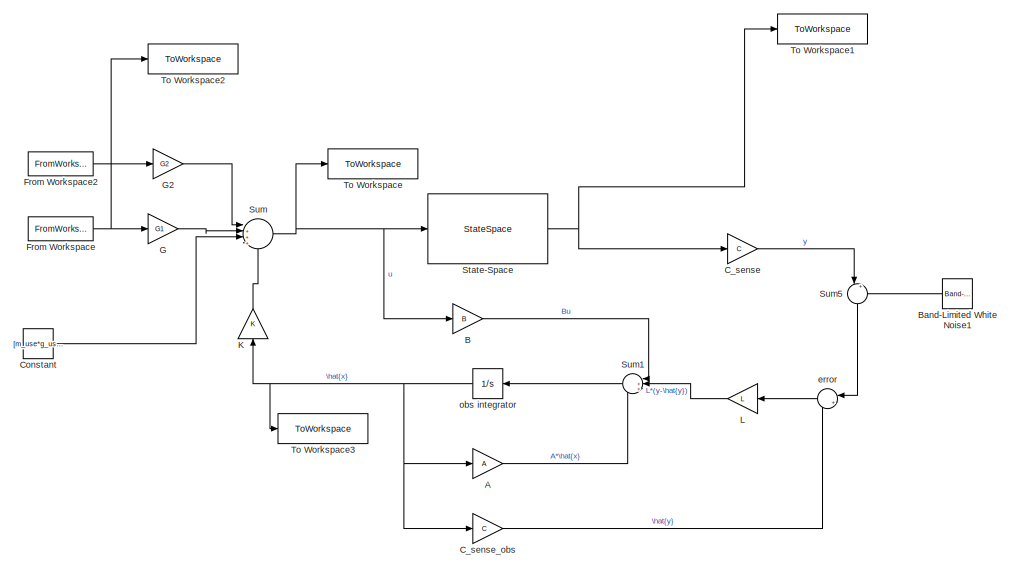
[diagram: root canvas - part 1/2, left side, full height]
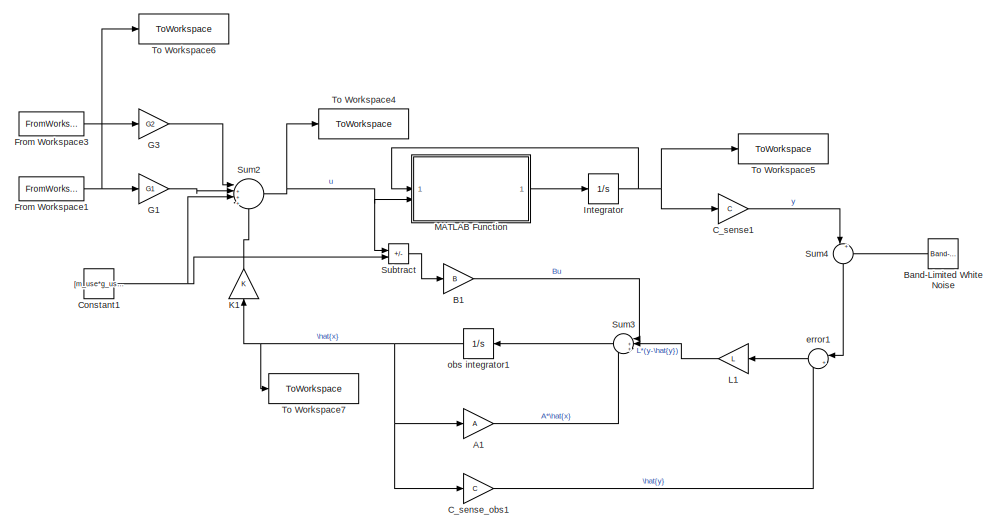
[diagram: root canvas - part 2/2, right side, full height]
MODEL slx_82502611040c
KIND model
CONFIG AbsTol = auto
CONFIG EnableMultiTasking = on
CONFIG FixedStep = .05
CONFIG MaxStep = auto
CONFIG MinStep = auto
CONFIG RelTol = 1e-3
CONFIG SampleTimeConstraint = Unconstrained
CONFIG SolverName = VariableStepAuto
CONFIG StartTime = 0.0
CONFIG StopTime = 120
BLOCK [Gain] A
  Gain = A
  Multiplication = Matrix(K*u)
BLOCK [Gain] A1
  Gain = A
  Multiplication = Matrix(K*u)
BLOCK [Gain] B
  Gain = B
  Multiplication = Matrix(K*u)
BLOCK [Gain] B1
  Gain = B
  Multiplication = Matrix(K*u)
BLOCK [Reference] Band-Limited White Noise  REF=simulink/Sources/Band-Limited
White Noise
  SourceBlock = simulink/Sources/Band-Limited\nWhite Noise
  SourceType = Band-Limited White Noise.
BLOCK [Reference] Band-Limited White Noise1  REF=simulink/Sources/Band-Limited
White Noise
  SourceBlock = simulink/Sources/Band-Limited\nWhite Noise
  SourceType = Band-Limited White Noise.
BLOCK [Gain] C_sense
  Gain = C
  Multiplication = Matrix(K*u)
BLOCK [Gain] C_sense1
  Gain = C
  Multiplication = Matrix(K*u)
BLOCK [Gain] C_sense_obs
  Gain = C
  Multiplication = Matrix(K*u)
BLOCK [Gain] C_sense_obs1
  Gain = C
  Multiplication = Matrix(K*u)
BLOCK [Constant] Constant
  Commented = on
  Value = [m_use*g_use/2, m_use*g_use/2]
BLOCK [Constant] Constant1
  Value = [m_use*g_use/2, m_use*g_use/2]
BLOCK [FromWorkspace] From Workspace
  OutDataTypeStr = double
  OutputAfterFinalValue = Setting to zero
  SampleTime = 0.01
  VariableName = reference_traj
BLOCK [FromWorkspace] From Workspace1
  OutDataTypeStr = double
  OutputAfterFinalValue = Setting to zero
  SampleTime = 0.01
  VariableName = reference_traj
BLOCK [FromWorkspace] From Workspace2
  OutDataTypeStr = double
  SampleTime = 0.01
  VariableName = ref_traj_der
BLOCK [FromWorkspace] From Workspace3
  OutDataTypeStr = double
  SampleTime = 0.01
  VariableName = ref_traj_der
BLOCK [Gain] G
  Gain = G1
  Multiplication = Matrix(K*u)
BLOCK [Gain] G1
  Gain = G1
  Multiplication = Matrix(K*u)
BLOCK [Gain] G2
  Gain = G2
  Multiplication = Matrix(K*u)
BLOCK [Gain] G3
  Gain = G2
  Multiplication = Matrix(K*u)
BLOCK [Integrator] Integrator
  InitialCondition = [1.0; 0.4; 0; 0.0; 0; 0]
BLOCK [Gain] K
  Gain = K
  Multiplication = Matrix(K*u)
  NameLocation = right
BLOCK [Gain] K1
  Gain = K
  Multiplication = Matrix(K*u)
  NameLocation = right
BLOCK [Gain] L
  Gain = L
  Multiplication = Matrix(K*u)
BLOCK [Gain] L1
  Gain = L
  Multiplication = Matrix(K*u)
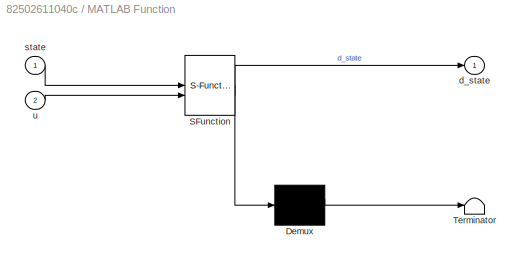
BLOCK [SubSystem] MATLAB Function
  ErrorFcn = Stateflow.Translate.translate
  PermitHierarchicalResolution = ExplicitOnly
  SFBlockType = MATLAB Function
  TreatAsAtomicUnit = on
BLOCK [Demux] MATLAB Function/ Demux 
  Outputs = 1
BLOCK [S-Function] MATLAB Function/ SFunction 
  EnableBusSupport = off
  FunctionName = sf_sfun
  PortCounts = [2 2]
  SFcnIsStateOwnerBlock = off
  SFunctionDeploymentMode = off
  Tag = Stateflow S-Function 2
BLOCK [Terminator] MATLAB Function/ Terminator 
BLOCK [Outport] MATLAB Function/d_state
BLOCK [Inport] MATLAB Function/state
BLOCK [Inport] MATLAB Function/u
  Port = 2
BLOCK [StateSpace] State-Space
  A = A
  B = B
  C = eye(6)
  D = zeros(6,2)
  InitialCondition = [1.0; 0.4; 0; 0.0; 0; 0]
BLOCK [Sum] Subtract
  IconShape = rectangular
  Inputs = +-
BLOCK [Sum] Sum
  Inputs = |+++-
BLOCK [Sum] Sum1
  Inputs = |+++
BLOCK [Sum] Sum2
  Inputs = |+++-
BLOCK [Sum] Sum3
  Inputs = |+++
BLOCK [Sum] Sum4
  Inputs = |++
  NameLocation = left
BLOCK [Sum] Sum5
  Inputs = |++
  NameLocation = left
BLOCK [ToWorkspace] To Workspace
  FixptAsFi = on
  MaxDataPoints = inf
  SampleTime = -1
  SaveFormat = Timeseries
  VariableName = ctrl_input_linear
BLOCK [ToWorkspace] To Workspace1
  FixptAsFi = on
  MaxDataPoints = inf
  SampleTime = -1
  SaveFormat = Timeseries
  VariableName = full_state_linear
BLOCK [ToWorkspace] To Workspace2
  FixptAsFi = on
  MaxDataPoints = inf
  SampleTime = -1
  SaveFormat = Timeseries
  VariableName = ref_sig_linear
BLOCK [ToWorkspace] To Workspace3
  FixptAsFi = on
  MaxDataPoints = inf
  SampleTime = -1
  SaveFormat = Timeseries
  VariableName = obs_state_linear
BLOCK [ToWorkspace] To Workspace4
  FixptAsFi = on
  MaxDataPoints = inf
  SampleTime = -1
  SaveFormat = Timeseries
  VariableName = ctrl_input_true
BLOCK [ToWorkspace] To Workspace5
  FixptAsFi = on
  MaxDataPoints = inf
  SampleTime = -1
  SaveFormat = Timeseries
  VariableName = full_state_true
BLOCK [ToWorkspace] To Workspace6
  FixptAsFi = on
  MaxDataPoints = inf
  SampleTime = -1
  SaveFormat = Timeseries
  VariableName = ref_sig_true
BLOCK [ToWorkspace] To Workspace7
  FixptAsFi = on
  MaxDataPoints = inf
  SampleTime = -1
  SaveFormat = Timeseries
  VariableName = obs_state_true
BLOCK [Sum] error
  Inputs = |+-
BLOCK [Sum] error1
  Inputs = |+-
BLOCK [Integrator] obs integrator
  InitialCondition = [0.9, 0.3, 0, 0, 0, 0]
BLOCK [Integrator] obs integrator1
  InitialCondition = [0.9; 0.3; 0; 0; 0; 0]
LINE A1:1 -> Sum3:3
LINE A:1 -> Sum1:3
LINE B1:1 -> Sum3:1
LINE B:1 -> Sum1:1
LINE Band-Limited White Noise1:1 -> Sum5:2
LINE Band-Limited White Noise:1 -> Sum4:2
LINE C_sense1:1 -> Sum4:1
LINE C_sense:1 -> Sum5:1
LINE C_sense_obs1:1 -> error1:2
LINE C_sense_obs:1 -> error:2
NET Constant1:1 -> Subtract:2, Sum2:3
LINE Constant:1 -> Sum:3
NET From Workspace1:1 -> G1:1, To Workspace6:1
LINE From Workspace2:1 -> G2:1
LINE From Workspace3:1 -> G3:1
NET From Workspace:1 -> G:1, To Workspace2:1
LINE G1:1 -> Sum2:2
LINE G2:1 -> Sum:1
LINE G3:1 -> Sum2:1
LINE G:1 -> Sum:2
NET Integrator:1 -> C_sense1:1, MATLAB Function:1, To Workspace5:1
LINE K1:1 -> Sum2:4
LINE K:1 -> Sum:4
LINE L1:1 -> Sum3:2
LINE L:1 -> Sum1:2
LINE MATLAB Function:1 -> Integrator:1
NET State-Space:1 -> C_sense:1, To Workspace1:1
LINE Subtract:1 -> B1:1
LINE Sum1:1 -> obs integrator:1
NET Sum2:1 -> MATLAB Function:2, Subtract:1, To Workspace4:1
LINE Sum3:1 -> obs integrator1:1
LINE Sum4:1 -> error1:1
LINE Sum5:1 -> error:1
NET Sum:1 -> B:1, State-Space:1, To Workspace:1
LINE error1:1 -> L1:1
LINE error:1 -> L:1
NET obs integrator1:1 -> A1:1, C_sense_obs1:1, K1:1, To Workspace7:1
NET obs integrator:1 -> A:1, C_sense_obs:1, K:1, To Workspace3:1
note: NET lines group one-source signal fan-out (src -> all destinations, sorted); 1:1 wires keep LINE
CHART MATLAB Function states=1 transitions=1
  STATE_LABEL 'eML_blk_kernel()'
  STATE_LABEL 'SCRIPT:\nfunction d_state = fcn(state, u)\n\n    Tl = u(1);\n    Tr = u(2);\n\n    m = 1.4;\n    I = 0.0211;\n    l = 0.159;\n    beta = 0.1365;\n    g = 9.81;\n    \n    theta = state(3);\n    xdot = state(4);\n    ydot = state(5);\n    thetadot = state(6);\n\n    xddot = (-(Tl + Tr)*sin(theta) - beta * xdot * sqrt(xdot^2 + ydot^2)) / m;\n    yddot = (((Tl + Tr) * cos(theta) - beta * ydot * sqrt(xdot^2 + ydot^2)) ...<+112ch>'
CHART  states=0 transitions=0
